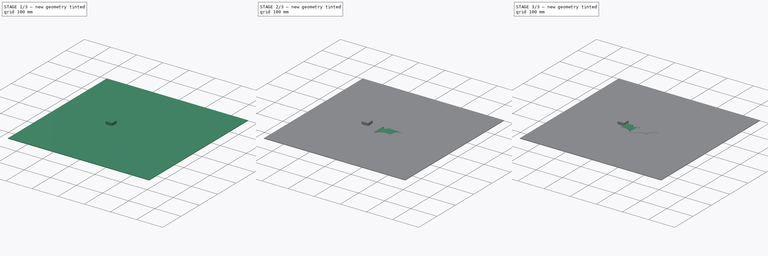
[diagram: build sequence overview — one tinted view per stage of 3, left to right]
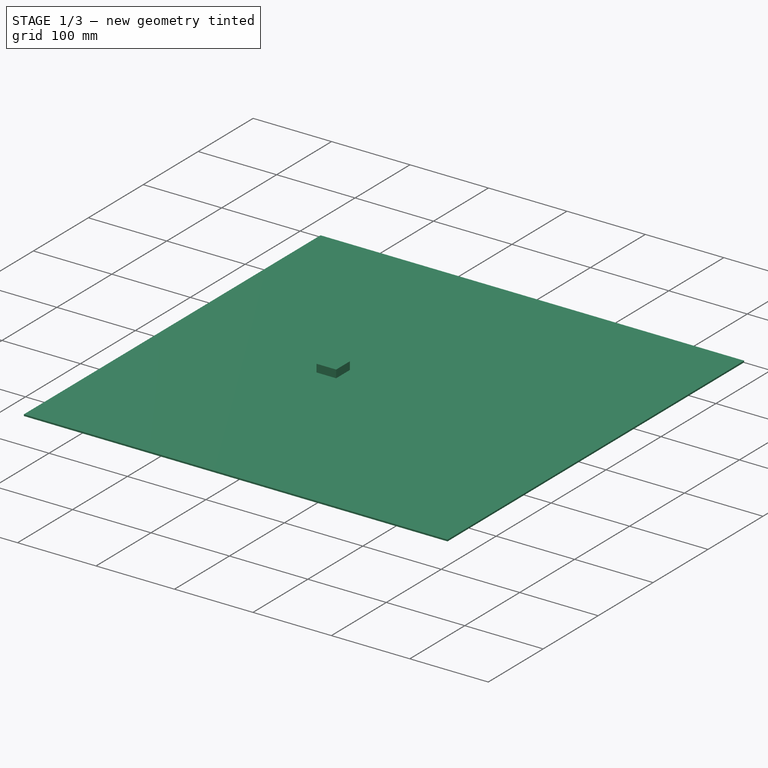
[diagram: stage 1 of 3 — iso view after this stage's code; geometry added in this stage tinted green]
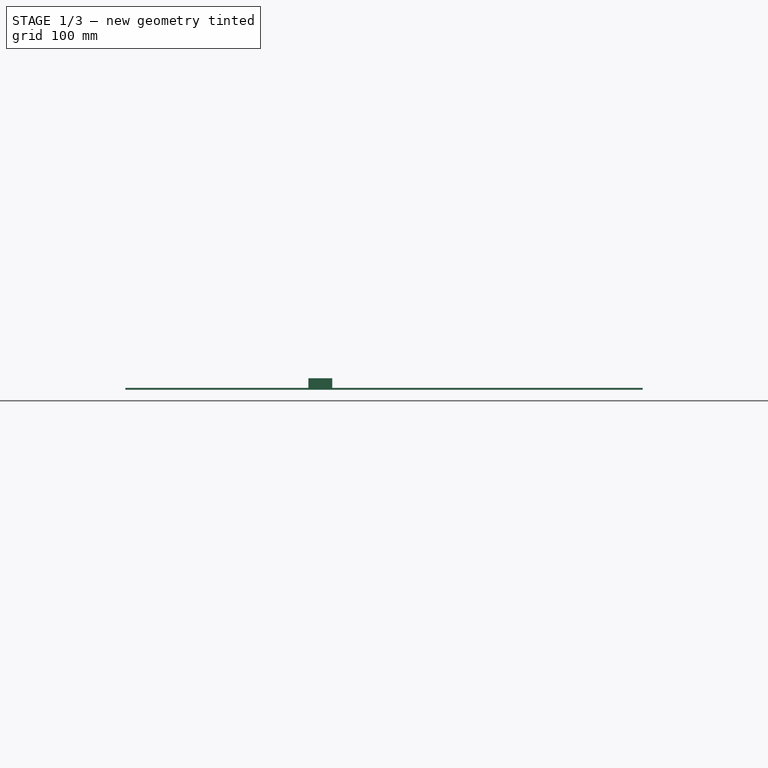
[diagram: stage 1 of 3 — front view after this stage's code; geometry added in this stage tinted green]
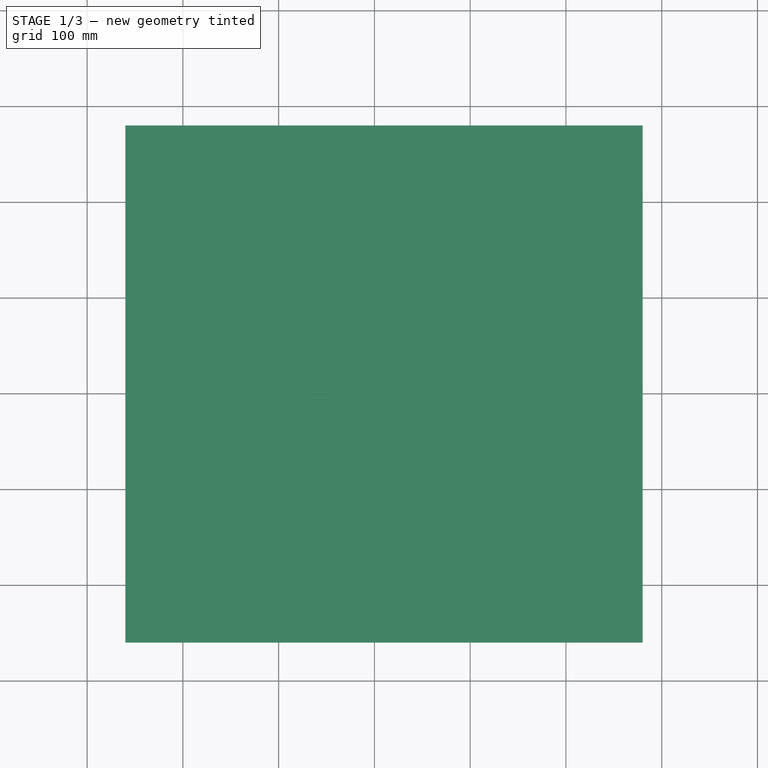
[diagram: stage 1 of 3 — top view after this stage's code; geometry added in this stage tinted green]
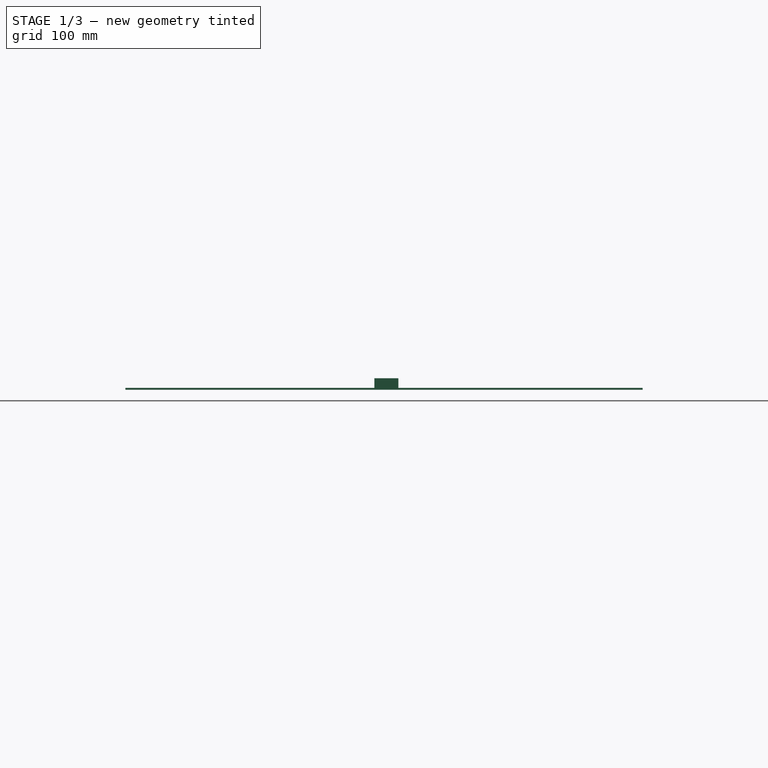
[diagram: stage 1 of 3 — right view after this stage's code; geometry added in this stage tinted green]
FCSTD DOCUMENT  (FreeCAD 0.17R13523 (Git))
Label: batarang-ray
License: All rights reserved
LicenseURL: http://en.wikipedia.org/wiki/All_rights_reserved
objects: Raytracing::RayFeature×3, Part::Box×2, Image::ImagePlane×1, Sketcher::SketchObject×1, PartDesign::Pad×1, PartDesign::Chamfer×1, PartDesign::Body×1, Part::Mirroring×1, Part::Fuse×1, Part::Feature×1, Raytracing::RayProject×1
note: 10 computed .brp shape members not serialized (recipe doc carries the construction recipe); baked Part::Feature solids carry a one-line shape summary decoded from their .brp

FEATURE [Part::Feature] Fusion001
  Placement = pos=(-11,0,7) rot=(0,1,0;0.10472rad)
  shape: bbox 149.4 x 53.36 x 18.65 mm, 24 faces (baked)
FEATURE [Part::Box] Box  label="Cube"
  AttacherType = Attacher::AttachEngine3D
  Height = 10
  Length = 25
  Placement = pos=(-69,0,0) rot=(0,0,1;0rad)
  Width = 25
FEATURE [Raytracing::RayFeature] Box_View
  Result = <blob: 2642 chars omitted>
  Source = -> Box
  Transparency = 0
FEATURE [Raytracing::RayFeature] Fusion001_View
  Result = <blob: 71385 chars omitted>
  Source = -> Fusion001
  Transparency = 0
FEATURE [Part::Box] Box001  label="Cube001"
  AttacherType = Attacher::AttachEngine3D
  Height = 2
  Length = 540
  Placement = pos=(-260,-260,-2) rot=(0,0,1;0rad)
  Width = 540
FEATURE [Raytracing::RayFeature] Box001_View
  Result = <blob: 2736 chars omitted>
  Source = -> Box001
  Transparency = 0
FEATURE [Raytracing::RayProject] PovProject
  Camera = // declares position and view direction\n\n// Generated by FreeCAD (http://www.freecadweb.org/)\n#declare cam_location =  <-58.3555,110.622,-85.5515>;\n#declare cam_look_at  = <-22.6306,8.33881,3.30232>;\n#declare cam_sky      = <0.146218,0.677374,0.720961>;\n#declare cam_angle    = 45; \ncamera {\n  location  cam_location\n  look_at   cam_look_at\n  sky       cam_sky\n  angle     cam_angle \n  right x*800/600\n}
  Group = -> [Box_View,Fusion001_View,Box001_View]
  Template = <userpath>/FCD/FC17/data/Mod/Raytracing/Templates/RadiosityOutdoorHQ.pov
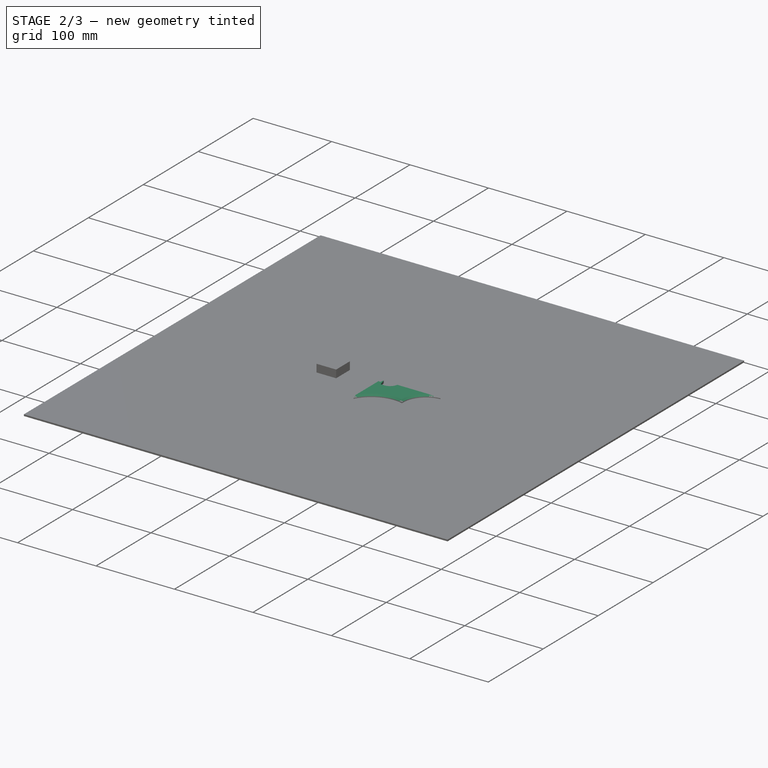
[diagram: stage 2 of 3 — iso view after this stage's code; geometry added in this stage tinted green]
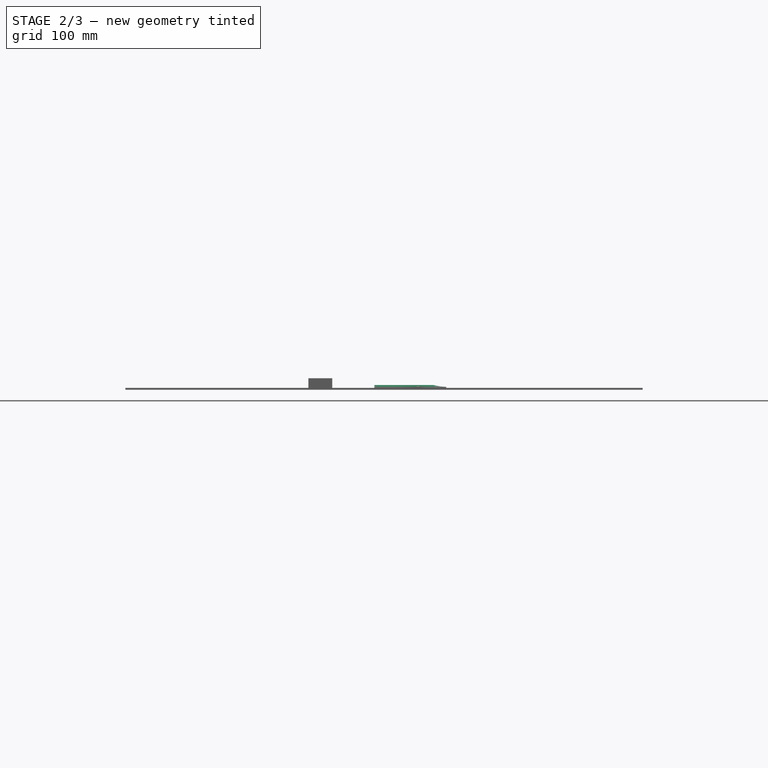
[diagram: stage 2 of 3 — front view after this stage's code; geometry added in this stage tinted green]
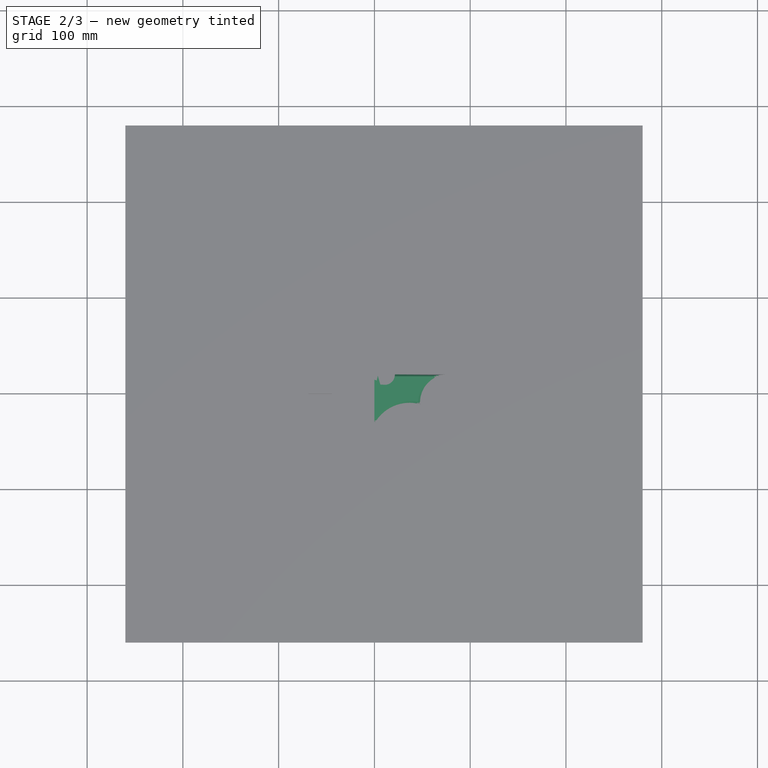
[diagram: stage 2 of 3 — top view after this stage's code; geometry added in this stage tinted green]
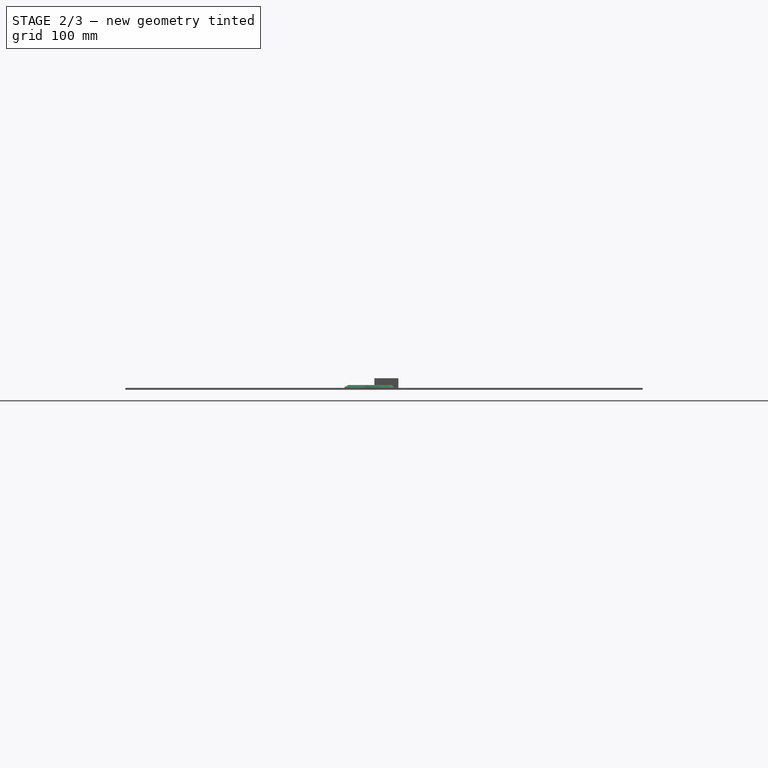
[diagram: stage 2 of 3 — right view after this stage's code; geometry added in this stage tinted green]
FEATURE [Image::ImagePlane] ImagePlane
  Placement = pos=(1,0,0) rot=(0,0,1;0rad)
  XSize = 167.968
  YSize = 99.0089
FEATURE [Sketcher::SketchObject] Sketch
  MapMode = 5
  Support = -> [XY_Plane001]
  sketch-geometry (10):
    g0: LineSegment StartX=0 StartY=0 StartZ=0 EndX=0 EndY=14.5025 EndZ=0
    g1: LineSegment StartX=0 StartY=14.5025 StartZ=0 EndX=2.44464 EndY=13.5418 EndZ=0
    g2: LineSegment StartX=2.44464 StartY=13.5418 StartZ=0 EndX=3.52541 EndY=18.8256 EndZ=0
    g3: LineSegment StartX=3.52541 StartY=18.8256 StartZ=0 EndX=6.16731 EndY=9.45904 EndZ=0
    g4: LineSegment StartX=6.16731 StartY=9.45904 StartZ=0 EndX=10.2503 EndY=9.2183 EndZ=0
    g5: ArcOfCircle CenterX=10.8649 CenterY=19.6433 CenterZ=0 NormalX=0 NormalY=0 NormalZ=1 AngleXU=0 Radius=10.4431 StartAngle=4.6535 EndAngle=6.3293
    g6: LineSegment StartX=21.297 StartY=20.1248 StartZ=0 EndX=75 EndY=20.1248 EndZ=0
    g7: ArcOfCircle CenterX=76.9474 CenterY=-9.11961 CenterZ=0 NormalX=0 NormalY=0 NormalZ=1 AngleXU=0 Radius=29.3092 StartAngle=1.63729 EndAngle=3.20691
    g8: ArcOfCircle CenterX=36.6975 CenterY=-51.4672 CenterZ=0 NormalX=0 NormalY=0 NormalZ=1 AngleXU=0 Radius=41.9049 StartAngle=1.3051 EndAngle=2.63775
    g9: LineSegment StartX=0 StartY=-31.2358 StartZ=0 EndX=0 EndY=0 EndZ=0
  constraints (18):
    c: Coincident(g-1,g0)
    c: Vertical(g0)
    c: Coincident(g0,g1)
    c: Coincident(g1,g2)
    c: Coincident(g2,g3)
    c: Coincident(g3,g4)
    c: Tangent(g4,g5) = -1.5708
    c: Coincident(g5,g6)
    c: Coincident(g7,g6)
    c: Horizontal(g6)
    c: DistanceX(g6) = 75
    c: DistanceY(g6) = 20.1248
    c: DistanceX(g7) = 47.7008
    c: DistanceY(g7) = -11.0328
    c: Coincident(g8,g7)
    c: PointOnObject(g8,g-2)
    c: Coincident(g9,g8)
    c: Coincident(g9,g-1)
FEATURE [PartDesign::Pad] Pad
  Length = 3
  Length2 = 100
  Profile = -> Sketch
  Type = 0
FEATURE [PartDesign::Chamfer] Chamfer
  Base = -> Pad [Edge28,Edge25,Edge22]
  BaseFeature = -> Pad
  Size = 2
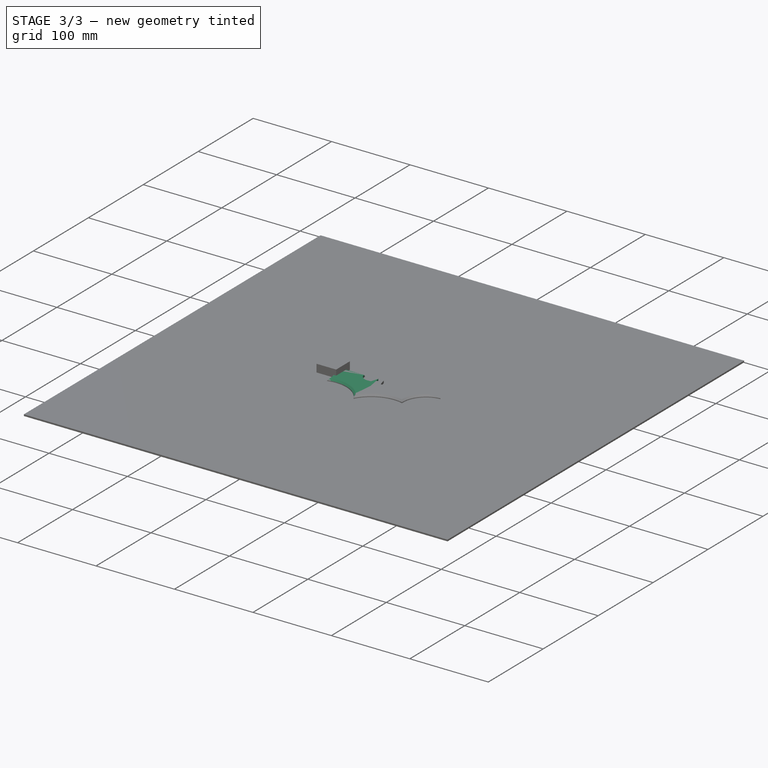
[diagram: stage 3 of 3 — iso view after this stage's code; geometry added in this stage tinted green]
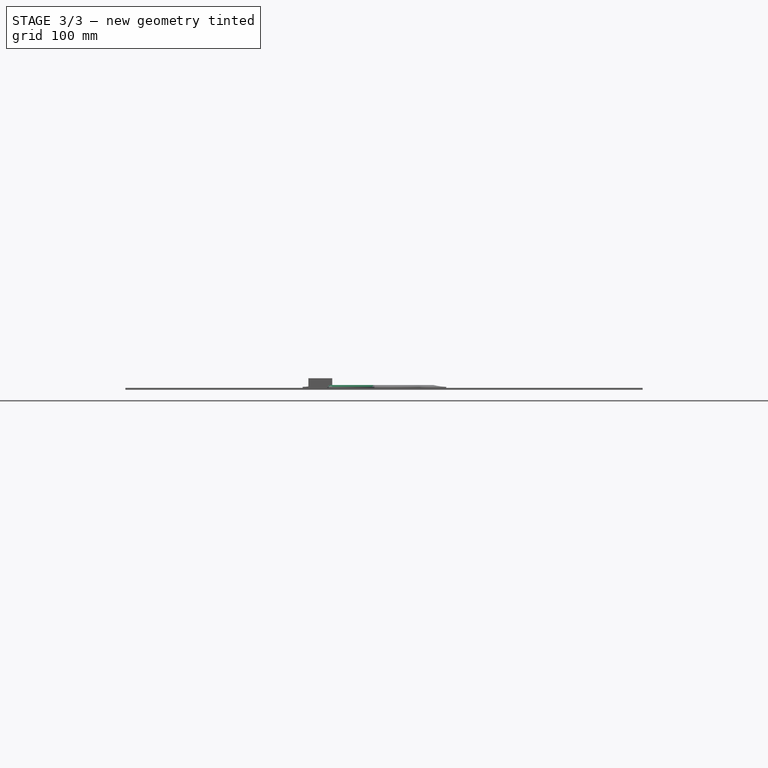
[diagram: stage 3 of 3 — front view after this stage's code; geometry added in this stage tinted green]
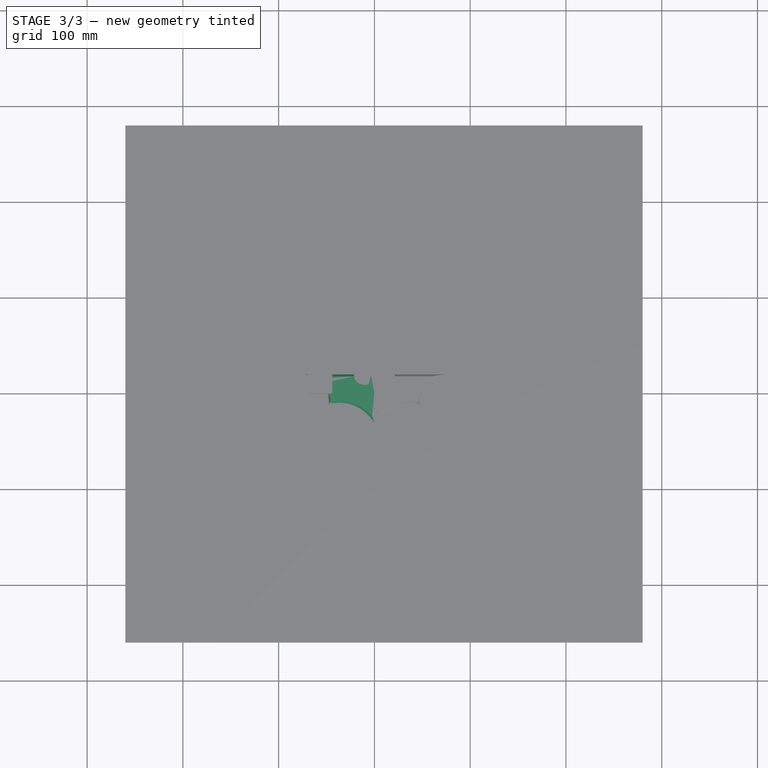
[diagram: stage 3 of 3 — top view after this stage's code; geometry added in this stage tinted green]
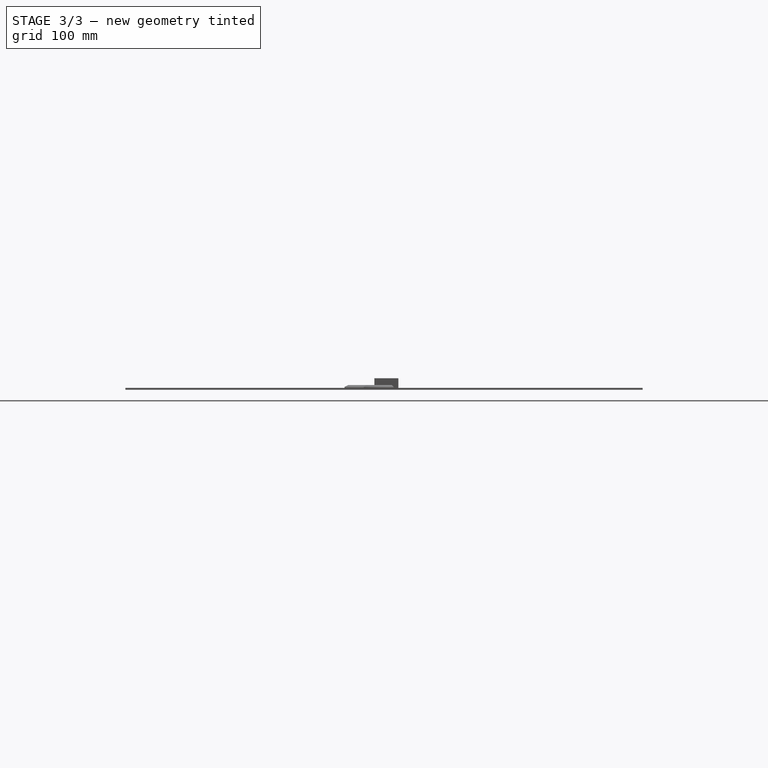
[diagram: stage 3 of 3 — right view after this stage's code; geometry added in this stage tinted green]
FEATURE [PartDesign::Body] Body001  label="Body"
  Group = -> [Sketch,Pad,Chamfer]
  Origin = -> Origin001
  Tip = -> Chamfer
FEATURE [Part::Mirroring] Part__Mirroring  label="Body (Mirror #1)"
  Base = (0,0,0)
  Normal = (1,0,0)
  Source = -> Body001
FEATURE [Part::Fuse] Fusion
  Base = -> Body001
  Tool = -> Part__Mirroring
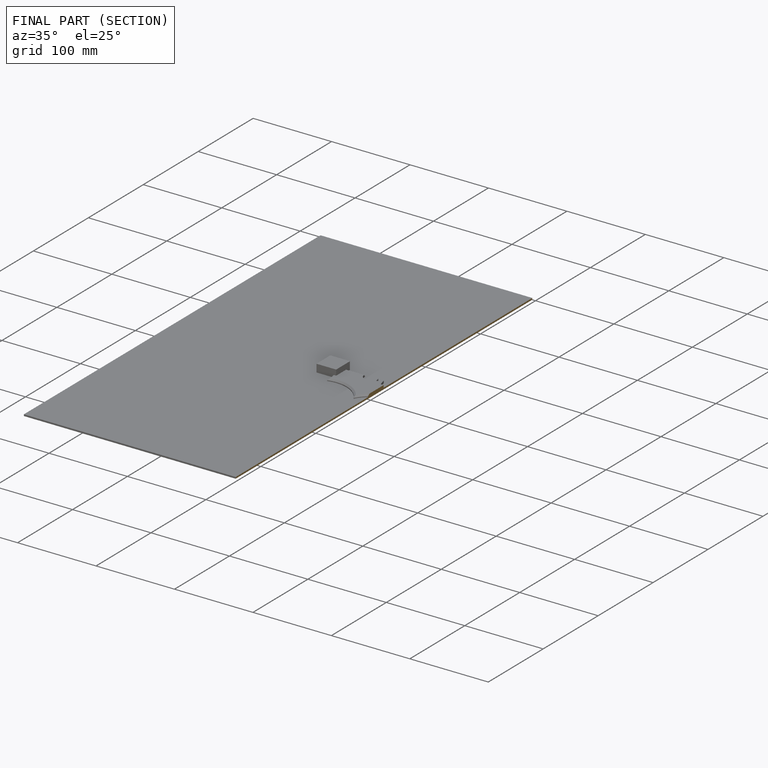
[diagram: finished part — half-section view (interior)]
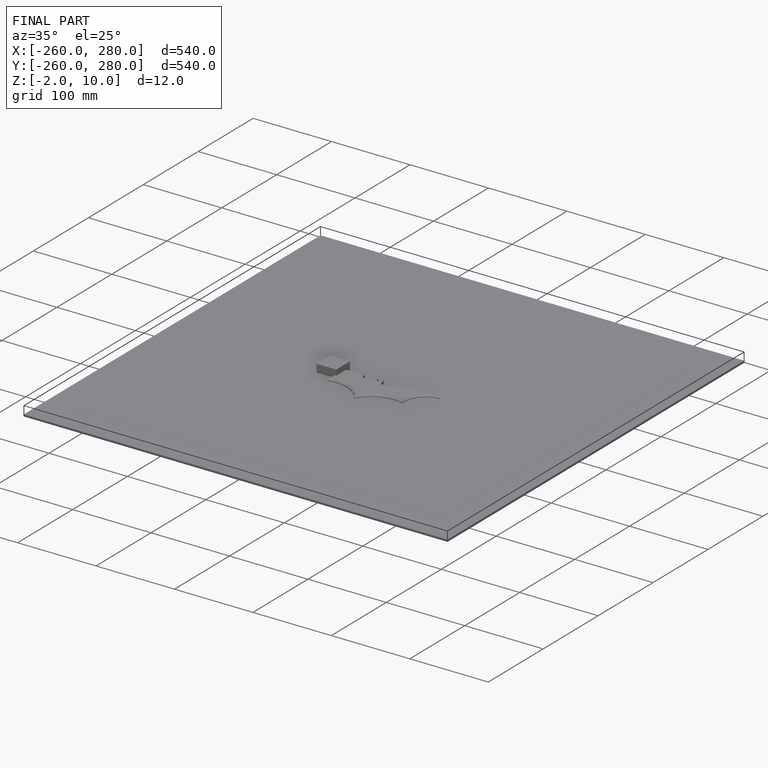
[diagram: finished part — iso view with bounding-box wireframe]
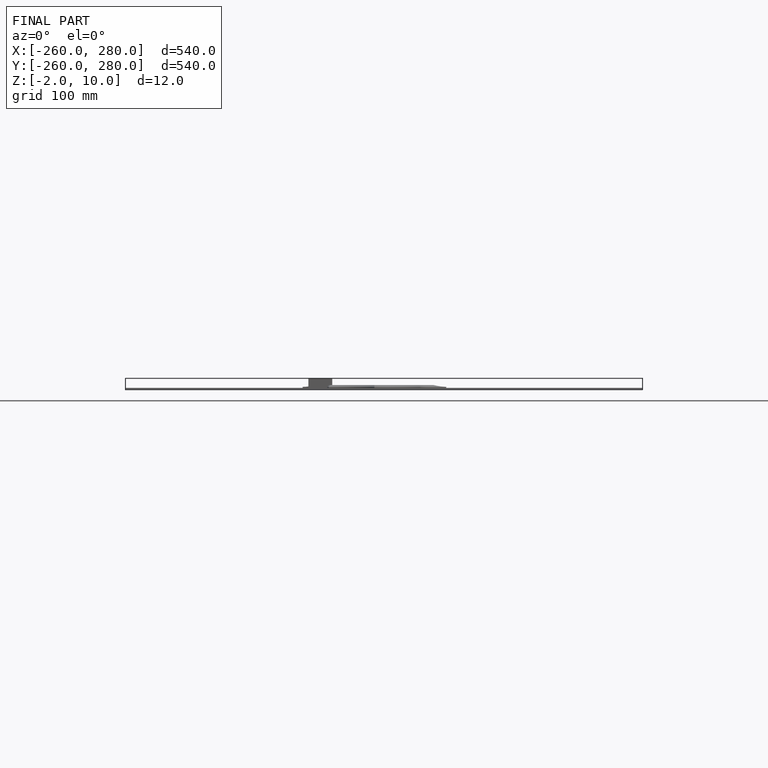
[diagram: finished part — front view with bounding-box wireframe]
